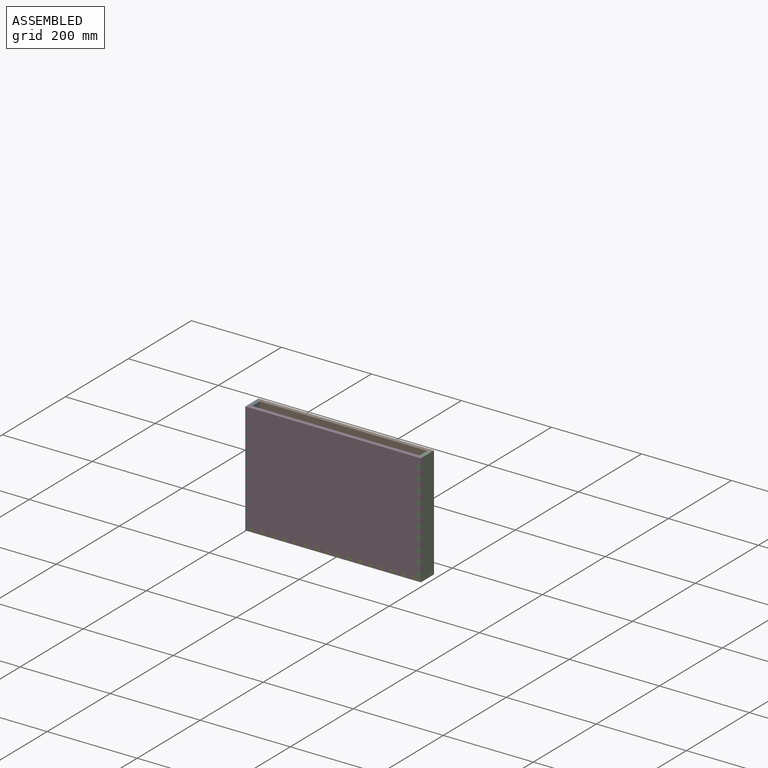
[diagram: assembled view]
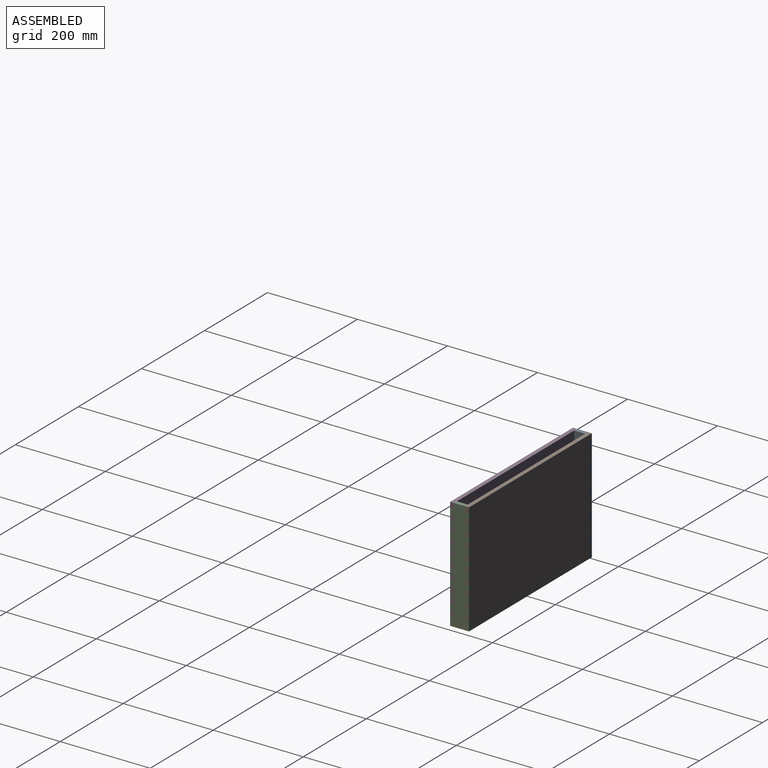
[diagram: assembled view, second angle]
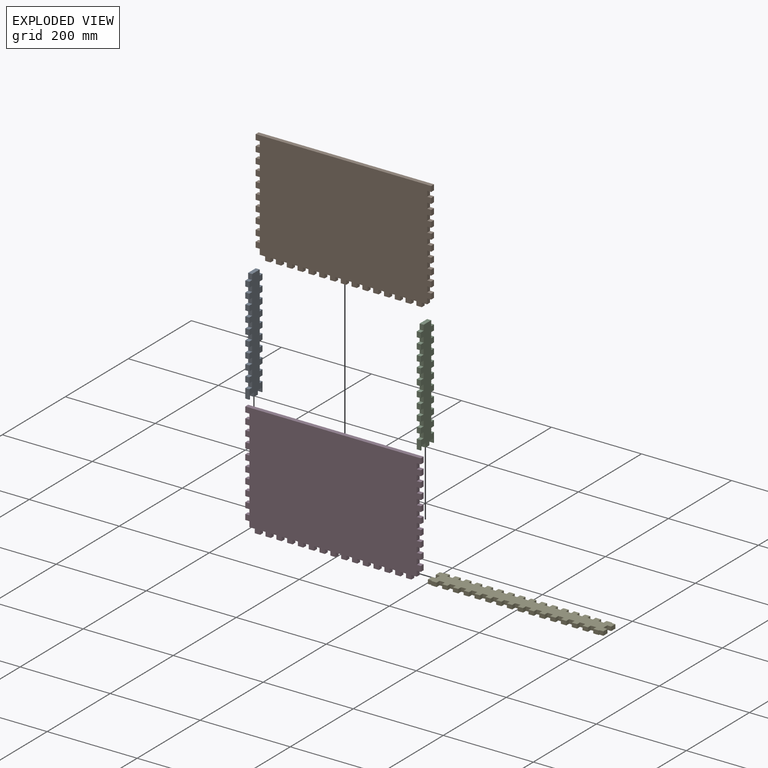
[diagram: exploded view]
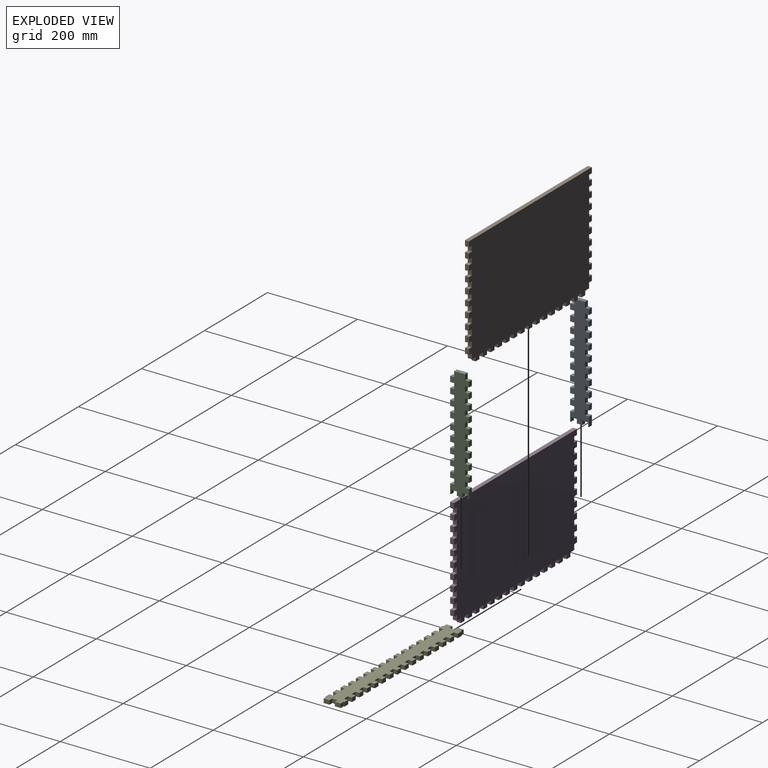
[diagram: exploded view, second angle]
ASSEMBLY  parts=5 mates=4
PART A: 90 faces, bbox 9x42x249 mm
  f0: plane 13x9mm, normal (0,0,-1), area 117mm2, adj f23,f24,f83,f89
  f1: plane 13x9mm, normal (0,0,-1), area 117mm2, adj f23,f24,f85,f86
  f2: plane 12x9mm, normal (0,1,0), area 108mm2, adj f23,f24,f54,f79
  f3: plane 12x9mm, normal (0,1,0), area 108mm2, adj f23,f24,f75,f78
  f4: plane 12x9mm, normal (0,1,0), area 108mm2, adj f23,f24,f57,f73
  f5: plane 12x9mm, normal (0,1,0), area 108mm2, adj f23,f24,f63,f70
  f6: plane 12x9mm, normal (0,1,0), area 108mm2, adj f23,f24,f67,f72
  f7: plane 12x9mm, normal (0,1,0), area 108mm2, adj f23,f24,f64,f77
  f8: plane 12x9mm, normal (0,1,0), area 108mm2, adj f23,f24,f61,f66
  f9: plane 12x9mm, normal (0,1,0), area 108mm2, adj f23,f24,f58,f69
  f10: plane 12x9mm, normal (0,1,0), area 108mm2, adj f23,f24,f55,f82
  f11: plane 12x9mm, normal (0,-1,0), area 108mm2, adj f23,f24,f49,f51
  f12: plane 12x9mm, normal (0,-1,0), area 108mm2, adj f23,f24,f46,f48
  f13: plane 12x9mm, normal (0,-1,0), area 108mm2, adj f23,f24,f43,f45
  f14: plane 12x9mm, normal (0,-1,0), area 108mm2, adj f23,f24,f40,f42
  f15: plane 12x9mm, normal (0,-1,0), area 108mm2, adj f23,f24,f37,f39
  f16: plane 12x9mm, normal (0,-1,0), area 108mm2, adj f23,f24,f34,f36
  f17: plane 12x9mm, normal (0,-1,0), area 108mm2, adj f23,f24,f31,f33
  f18: plane 12x9mm, normal (0,-1,0), area 108mm2, adj f23,f24,f28,f30
  f19: plane 12x9mm, normal (0,-1,0), area 108mm2, adj f23,f24,f25,f27
  f20: plane 12x9mm, normal (0,-1,0), area 108mm2, adj f22,f23,f24,f52
  f21: plane 12x9mm, normal (0,1,0), area 108mm2, adj f22,f23,f24,f60
  f22: plane 24x9mm, normal (0,0,1), area 216mm2, adj f20,f21,f23,f24
  f23: plane 249x42mm, normal (1,0,0), area 8064mm2, adj f0,f1,f2,f3,f4,f5,f6,f7
  f24: plane 249x42mm, normal (-1,0,0), area 8064mm2, adj f0,f1,f2,f3,f4,f5,f6,f7
  f25: plane 9x9mm, normal (0,0,1), area 81mm2, adj f19,f23,f24,f26
  f26: plane 21x9mm, normal (0,-1,0), area 189mm2, adj f23,f24,f25,f88
  f27: plane 9x9mm, normal (0,0,-1), area 81mm2, adj f19,f23,f24,f29
  f28: plane 9x9mm, normal (0,0,1), area 81mm2, adj f18,f23,f24,f29
  f29: plane 12x9mm, normal (0,-1,0), area 108mm2, adj f23,f24,f27,f28
  f30: plane 9x9mm, normal (0,0,-1), area 81mm2, adj f18,f23,f24,f32
  f31: plane 9x9mm, normal (0,0,1), area 81mm2, adj f17,f23,f24,f32
  f32: plane 12x9mm, normal (0,-1,0), area 108mm2, adj f23,f24,f30,f31
  f33: plane 9x9mm, normal (0,0,-1), area 81mm2, adj f17,f23,f24,f35
  f34: plane 9x9mm, normal (0,0,1), area 81mm2, adj f16,f23,f24,f35
  f35: plane 12x9mm, normal (0,-1,0), area 108mm2, adj f23,f24,f33,f34
  f36: plane 9x9mm, normal (0,0,-1), area 81mm2, adj f16,f23,f24,f38
  f37: plane 9x9mm, normal (0,0,1), area 81mm2, adj f15,f23,f24,f38
  f38: plane 12x9mm, normal (0,-1,0), area 108mm2, adj f23,f24,f36,f37
  f39: plane 9x9mm, normal (0,0,-1), area 81mm2, adj f15,f23,f24,f41
  f40: plane 9x9mm, normal (0,0,1), area 81mm2, adj f14,f23,f24,f41
  f41: plane 12x9mm, normal (0,-1,0), area 108mm2, adj f23,f24,f39,f40
  f42: plane 9x9mm, normal (0,0,-1), area 81mm2, adj f14,f23,f24,f44
  f43: plane 9x9mm, normal (0,0,1), area 81mm2, adj f13,f23,f24,f44
  f44: plane 12x9mm, normal (0,-1,0), area 108mm2, adj f23,f24,f42,f43
  f45: plane 9x9mm, normal (0,0,-1), area 81mm2, adj f13,f23,f24,f47
  f46: plane 9x9mm, normal (0,0,1), area 81mm2, adj f12,f23,f24,f47
  f47: plane 12x9mm, normal (0,-1,0), area 108mm2, adj f23,f24,f45,f46
  f48: plane 9x9mm, normal (0,0,-1), area 81mm2, adj f12,f23,f24,f50
  f49: plane 9x9mm, normal (0,0,1), area 81mm2, adj f11,f23,f24,f50
  f50: plane 12x9mm, normal (0,-1,0), area 108mm2, adj f23,f24,f48,f49
  f51: plane 9x9mm, normal (0,0,-1), area 81mm2, adj f11,f23,f24,f53
  f52: plane 9x9mm, normal (0,0,1), area 81mm2, adj f20,f23,f24,f53
  f53: plane 12x9mm, normal (0,-1,0), area 108mm2, adj f23,f24,f51,f52
  f54: plane 9x9mm, normal (0,0,1), area 81mm2, adj f2,f23,f24,f56
  f55: plane 9x9mm, normal (0,0,-1), area 81mm2, adj f10,f23,f24,f56
  f56: plane 12x9mm, normal (0,1,0), area 108mm2, adj f23,f24,f54,f55
  f57: plane 9x9mm, normal (0,0,1), area 81mm2, adj f4,f23,f24,f59
  f58: plane 9x9mm, normal (0,0,-1), area 81mm2, adj f9,f23,f24,f59
  f59: plane 12x9mm, normal (0,1,0), area 108mm2, adj f23,f24,f57,f58
  f60: plane 9x9mm, normal (0,0,1), area 81mm2, adj f21,f23,f24,f62
  f61: plane 9x9mm, normal (0,0,-1), area 81mm2, adj f8,f23,f24,f62
  f62: plane 12x9mm, normal (0,1,0), area 108mm2, adj f23,f24,f60,f61
  f63: plane 9x9mm, normal (0,0,1), area 81mm2, adj f5,f23,f24,f65
  f64: plane 9x9mm, normal (0,0,-1), area 81mm2, adj f7,f23,f24,f65
  f65: plane 12x9mm, normal (0,1,0), area 108mm2, adj f23,f24,f63,f64
  f66: plane 9x9mm, normal (0,0,1), area 81mm2, adj f8,f23,f24,f68
  f67: plane 9x9mm, normal (0,0,-1), area 81mm2, adj f6,f23,f24,f68
  f68: plane 12x9mm, normal (0,1,0), area 108mm2, adj f23,f24,f66,f67
  f69: plane 9x9mm, normal (0,0,1), area 81mm2, adj f9,f23,f24,f71
  f70: plane 9x9mm, normal (0,0,-1), area 81mm2, adj f5,f23,f24,f71
  f71: plane 12x9mm, normal (0,1,0), area 108mm2, adj f23,f24,f69,f70
  f72: plane 9x9mm, normal (0,0,1), area 81mm2, adj f6,f23,f24,f74
  f73: plane 9x9mm, normal (0,0,-1), area 81mm2, adj f4,f23,f24,f74
  f74: plane 12x9mm, normal (0,1,0), area 108mm2, adj f23,f24,f72,f73
  f75: plane 9x9mm, normal (0,0,-1), area 81mm2, adj f3,f23,f24,f76
  f76: plane 12x9mm, normal (0,1,0), area 108mm2, adj f23,f24,f75,f77
  f77: plane 9x9mm, normal (0,0,1), area 81mm2, adj f7,f23,f24,f76
  f78: plane 9x9mm, normal (0,0,1), area 81mm2, adj f3,f23,f24,f80
  f79: plane 9x9mm, normal (0,0,-1), area 81mm2, adj f2,f23,f24,f80
  f80: plane 12x9mm, normal (0,1,0), area 108mm2, adj f23,f24,f78,f79
  f81: plane 21x9mm, normal (0,1,0), area 189mm2, adj f23,f24,f82,f87
  f82: plane 9x9mm, normal (0,0,1), area 81mm2, adj f10,f23,f24,f81
  f83: plane 9x9mm, normal (0,-1,0), area 81mm2, adj f0,f23,f24,f84
  f84: plane 12x9mm, normal (0,0,-1), area 108mm2, adj f23,f24,f83,f85
  f85: plane 9x9mm, normal (0,1,0), area 81mm2, adj f1,f23,f24,f84
  f86: plane 9x9mm, normal (0,-1,0), area 81mm2, adj f1,f23,f24,f87
  f87: plane 9x2mm, normal (0,0,-1), area 18mm2, adj f23,f24,f81,f86
  f88: plane 9x2mm, normal (0,0,-1), area 18mm2, adj f23,f24,f26,f89
  f89: plane 9x9mm, normal (0,1,0), area 81mm2, adj f0,f23,f24,f88
PART B: 142 faces, bbox 390x9x249 mm
  f0: plane 12x9mm, normal (0,0,-1), area 108mm2, adj f37,f38,f124,f139
  f1: plane 12x9mm, normal (0,0,-1), area 108mm2, adj f37,f38,f130,f136
  f2: plane 12x9mm, normal (0,0,-1), area 108mm2, adj f37,f38,f133,f141
  f3: plane 12x9mm, normal (0,0,-1), area 108mm2, adj f25,f37,f38,f132
  f4: plane 12x9mm, normal (0,0,-1), area 108mm2, adj f37,f38,f129,f138
  f5: plane 12x9mm, normal (0,0,-1), area 108mm2, adj f37,f38,f126,f127
  f6: plane 12x9mm, normal (0,0,-1), area 108mm2, adj f37,f38,f123,f135
  f7: plane 12x9mm, normal (0,0,-1), area 108mm2, adj f37,f38,f117,f118
  f8: plane 12x9mm, normal (0,0,-1), area 108mm2, adj f37,f38,f114,f115
  f9: plane 12x9mm, normal (0,0,-1), area 108mm2, adj f37,f38,f111,f112
  f10: plane 12x9mm, normal (0,0,-1), area 108mm2, adj f37,f38,f108,f109
  f11: plane 12x9mm, normal (0,0,-1), area 108mm2, adj f37,f38,f105,f106
  f12: plane 12x9mm, normal (0,0,-1), area 108mm2, adj f37,f38,f102,f103
  f13: plane 12x9mm, normal (0,0,-1), area 108mm2, adj f37,f38,f99,f100
  f14: plane 12x9mm, normal (0,0,-1), area 108mm2, adj f37,f38,f97,f121
  f15: plane 12x9mm, normal (1,0,0), area 108mm2, adj f37,f38,f93,f95
  f16: plane 12x9mm, normal (1,0,0), area 108mm2, adj f37,f38,f88,f91
  f17: plane 12x9mm, normal (1,0,0), area 108mm2, adj f37,f38,f79,f89
  f18: plane 12x9mm, normal (1,0,0), area 108mm2, adj f37,f38,f76,f86
  f19: plane 12x9mm, normal (1,0,0), area 108mm2, adj f37,f38,f83,f85
  f20: plane 12x9mm, normal (1,0,0), area 108mm2, adj f37,f38,f73,f80
  f21: plane 12x9mm, normal (1,0,0), area 108mm2, adj f35,f37,f38,f77
  f22: plane 12x9mm, normal (1,0,0), area 108mm2, adj f37,f38,f74,f82
  f23: plane 12x9mm, normal (1,0,0), area 108mm2, adj f37,f38,f71,f94
  f24: plane 12x9mm, normal (1,0,0), area 108mm2, adj f37,f38,f68,f70
  f25: plane 12x9mm, normal (-1,0,0), area 108mm2, adj f3,f37,f38,f67
  f26: plane 12x9mm, normal (-1,0,0), area 108mm2, adj f37,f38,f64,f65
  f27: plane 12x9mm, normal (-1,0,0), area 108mm2, adj f37,f38,f61,f62
  f28: plane 12x9mm, normal (-1,0,0), area 108mm2, adj f37,f38,f58,f59
  f29: plane 12x9mm, normal (-1,0,0), area 108mm2, adj f37,f38,f55,f56
  f30: plane 12x9mm, normal (-1,0,0), area 108mm2, adj f37,f38,f52,f53
  f31: plane 12x9mm, normal (-1,0,0), area 108mm2, adj f37,f38,f49,f50
  f32: plane 12x9mm, normal (-1,0,0), area 108mm2, adj f37,f38,f46,f47
  f33: plane 12x9mm, normal (-1,0,0), area 108mm2, adj f37,f38,f43,f44
  f34: plane 12x9mm, normal (-1,0,0), area 108mm2, adj f37,f38,f39,f41
  f35: plane 12x9mm, normal (0,0,-1), area 108mm2, adj f21,f37,f38,f120
  f36: plane 390x9mm, normal (0,0,1), area 3510mm2, adj f37,f38,f40,f69
  f37: plane 390x249mm, normal (0,-1,0), area 93060mm2, adj f0,f1,f2,f3,f4,f5,f6,f7
  f38: plane 390x249mm, normal (0,1,0), area 93060mm2, adj f0,f1,f2,f3,f4,f5,f6,f7
  f39: plane 9x9mm, normal (0,0,-1), area 81mm2, adj f34,f37,f38,f40
  f40: plane 12x9mm, normal (-1,0,0), area 108mm2, adj f36,f37,f38,f39
  f41: plane 9x9mm, normal (0,0,1), area 81mm2, adj f34,f37,f38,f42
  f42: plane 12x9mm, normal (-1,0,0), area 108mm2, adj f37,f38,f41,f43
  f43: plane 9x9mm, normal (0,0,-1), area 81mm2, adj f33,f37,f38,f42
  f44: plane 9x9mm, normal (0,0,1), area 81mm2, adj f33,f37,f38,f45
  f45: plane 12x9mm, normal (-1,0,0), area 108mm2, adj f37,f38,f44,f46
  f46: plane 9x9mm, normal (0,0,-1), area 81mm2, adj f32,f37,f38,f45
  f47: plane 9x9mm, normal (0,0,1), area 81mm2, adj f32,f37,f38,f48
  f48: plane 12x9mm, normal (-1,0,0), area 108mm2, adj f37,f38,f47,f49
  f49: plane 9x9mm, normal (0,0,-1), area 81mm2, adj f31,f37,f38,f48
  f50: plane 9x9mm, normal (0,0,1), area 81mm2, adj f31,f37,f38,f51
  f51: plane 12x9mm, normal (-1,0,0), area 108mm2, adj f37,f38,f50,f52
  f52: plane 9x9mm, normal (0,0,-1), area 81mm2, adj f30,f37,f38,f51
  f53: plane 9x9mm, normal (0,0,1), area 81mm2, adj f30,f37,f38,f54
  f54: plane 12x9mm, normal (-1,0,0), area 108mm2, adj f37,f38,f53,f55
  f55: plane 9x9mm, normal (0,0,-1), area 81mm2, adj f29,f37,f38,f54
  f56: plane 9x9mm, normal (0,0,1), area 81mm2, adj f29,f37,f38,f57
  f57: plane 12x9mm, normal (-1,0,0), area 108mm2, adj f37,f38,f56,f58
  f58: plane 9x9mm, normal (0,0,-1), area 81mm2, adj f28,f37,f38,f57
  f59: plane 9x9mm, normal (0,0,1), area 81mm2, adj f28,f37,f38,f60
  f60: plane 12x9mm, normal (-1,0,0), area 108mm2, adj f37,f38,f59,f61
  f61: plane 9x9mm, normal (0,0,-1), area 81mm2, adj f27,f37,f38,f60
  f62: plane 9x9mm, normal (0,0,1), area 81mm2, adj f27,f37,f38,f63
  f63: plane 12x9mm, normal (-1,0,0), area 108mm2, adj f37,f38,f62,f64
  f64: plane 9x9mm, normal (0,0,-1), area 81mm2, adj f26,f37,f38,f63
  f65: plane 9x9mm, normal (0,0,1), area 81mm2, adj f26,f37,f38,f66
  f66: plane 12x9mm, normal (-1,0,0), area 108mm2, adj f37,f38,f65,f67
  f67: plane 9x9mm, normal (0,0,-1), area 81mm2, adj f25,f37,f38,f66
  f68: plane 9x9mm, normal (0,0,-1), area 81mm2, adj f24,f37,f38,f69
  f69: plane 12x9mm, normal (1,0,0), area 108mm2, adj f36,f37,f38,f68
  f70: plane 9x9mm, normal (0,0,1), area 81mm2, adj f24,f37,f38,f72
  f71: plane 9x9mm, normal (0,0,-1), area 81mm2, adj f23,f37,f38,f72
  f72: plane 12x9mm, normal (1,0,0), area 108mm2, adj f37,f38,f70,f71
  f73: plane 9x9mm, normal (0,0,1), area 81mm2, adj f20,f37,f38,f75
  f74: plane 9x9mm, normal (0,0,-1), area 81mm2, adj f22,f37,f38,f75
  f75: plane 12x9mm, normal (1,0,0), area 108mm2, adj f37,f38,f73,f74
  f76: plane 9x9mm, normal (0,0,1), area 81mm2, adj f18,f37,f38,f78
  f77: plane 9x9mm, normal (0,0,-1), area 81mm2, adj f21,f37,f38,f78
  f78: plane 12x9mm, normal (1,0,0), area 108mm2, adj f37,f38,f76,f77
  f79: plane 9x9mm, normal (0,0,1), area 81mm2, adj f17,f37,f38,f81
  f80: plane 9x9mm, normal (0,0,-1), area 81mm2, adj f20,f37,f38,f81
  f81: plane 12x9mm, normal (1,0,0), area 108mm2, adj f37,f38,f79,f80
  f82: plane 9x9mm, normal (0,0,1), area 81mm2, adj f22,f37,f38,f84
  f83: plane 9x9mm, normal (0,0,-1), area 81mm2, adj f19,f37,f38,f84
  f84: plane 12x9mm, normal (1,0,0), area 108mm2, adj f37,f38,f82,f83
  f85: plane 9x9mm, normal (0,0,1), area 81mm2, adj f19,f37,f38,f87
  f86: plane 9x9mm, normal (0,0,-1), area 81mm2, adj f18,f37,f38,f87
  f87: plane 12x9mm, normal (1,0,0), area 108mm2, adj f37,f38,f85,f86
  f88: plane 9x9mm, normal (0,0,1), area 81mm2, adj f16,f37,f38,f90
  f89: plane 9x9mm, normal (0,0,-1), area 81mm2, adj f17,f37,f38,f90
  f90: plane 12x9mm, normal (1,0,0), area 108mm2, adj f37,f38,f88,f89
  f91: plane 9x9mm, normal (0,0,-1), area 81mm2, adj f16,f37,f38,f92
  f92: plane 12x9mm, normal (1,0,0), area 108mm2, adj f37,f38,f91,f93
  f93: plane 9x9mm, normal (0,0,1), area 81mm2, adj f15,f37,f38,f92
  f94: plane 9x9mm, normal (0,0,1), area 81mm2, adj f23,f37,f38,f96
  f95: plane 9x9mm, normal (0,0,-1), area 81mm2, adj f15,f37,f38,f96
  f96: plane 12x9mm, normal (1,0,0), area 108mm2, adj f37,f38,f94,f95
  f97: plane 9x9mm, normal (-1,0,0), area 81mm2, adj f14,f37,f38,f98
  f98: plane 12x9mm, normal (0,0,-1), area 108mm2, adj f37,f38,f97,f99
  f99: plane 9x9mm, normal (1,0,0), area 81mm2, adj f13,f37,f38,f98
  f100: plane 9x9mm, normal (-1,0,0), area 81mm2, adj f13,f37,f38,f101
  f101: plane 12x9mm, normal (0,0,-1), area 108mm2, adj f37,f38,f100,f102
  f102: plane 9x9mm, normal (1,0,0), area 81mm2, adj f12,f37,f38,f101
  f103: plane 9x9mm, normal (-1,0,0), area 81mm2, adj f12,f37,f38,f104
  f104: plane 12x9mm, normal (0,0,-1), area 108mm2, adj f37,f38,f103,f105
  f105: plane 9x9mm, normal (1,0,0), area 81mm2, adj f11,f37,f38,f104
  f106: plane 9x9mm, normal (-1,0,0), area 81mm2, adj f11,f37,f38,f107
  f107: plane 12x9mm, normal (0,0,-1), area 108mm2, adj f37,f38,f106,f108
  f108: plane 9x9mm, normal (1,0,0), area 81mm2, adj f10,f37,f38,f107
  f109: plane 9x9mm, normal (-1,0,0), area 81mm2, adj f10,f37,f38,f110
  f110: plane 12x9mm, normal (0,0,-1), area 108mm2, adj f37,f38,f109,f111
  f111: plane 9x9mm, normal (1,0,0), area 81mm2, adj f9,f37,f38,f110
  f112: plane 9x9mm, normal (-1,0,0), area 81mm2, adj f9,f37,f38,f113
  f113: plane 12x9mm, normal (0,0,-1), area 108mm2, adj f37,f38,f112,f114
  f114: plane 9x9mm, normal (1,0,0), area 81mm2, adj f8,f37,f38,f113
  f115: plane 9x9mm, normal (-1,0,0), area 81mm2, adj f8,f37,f38,f116
  f116: plane 12x9mm, normal (0,0,-1), area 108mm2, adj f37,f38,f115,f117
  f117: plane 9x9mm, normal (1,0,0), area 81mm2, adj f7,f37,f38,f116
  f118: plane 9x9mm, normal (-1,0,0), area 81mm2, adj f7,f37,f38,f119
  f119: plane 12x9mm, normal (0,0,-1), area 108mm2, adj f37,f38,f118,f120
  f120: plane 9x9mm, normal (1,0,0), area 81mm2, adj f35,f37,f38,f119
  f121: plane 9x9mm, normal (1,0,0), area 81mm2, adj f14,f37,f38,f122
  f122: plane 12x9mm, normal (0,0,-1), area 108mm2, adj f37,f38,f121,f123
  f123: plane 9x9mm, normal (-1,0,0), area 81mm2, adj f6,f37,f38,f122
  f124: plane 9x9mm, normal (1,0,0), area 81mm2, adj f0,f37,f38,f125
  f125: plane 12x9mm, normal (0,0,-1), area 108mm2, adj f37,f38,f124,f126
  f126: plane 9x9mm, normal (-1,0,0), area 81mm2, adj f5,f37,f38,f125
  f127: plane 9x9mm, normal (1,0,0), area 81mm2, adj f5,f37,f38,f128
  f128: plane 12x9mm, normal (0,0,-1), area 108mm2, adj f37,f38,f127,f129
  f129: plane 9x9mm, normal (-1,0,0), area 81mm2, adj f4,f37,f38,f128
  f130: plane 9x9mm, normal (1,0,0), area 81mm2, adj f1,f37,f38,f131
  f131: plane 12x9mm, normal (0,0,-1), area 108mm2, adj f37,f38,f130,f132
  f132: plane 9x9mm, normal (-1,0,0), area 81mm2, adj f3,f37,f38,f131
  f133: plane 9x9mm, normal (-1,0,0), area 81mm2, adj f2,f37,f38,f134
  f134: plane 12x9mm, normal (0,0,-1), area 108mm2, adj f37,f38,f133,f135
  f135: plane 9x9mm, normal (1,0,0), area 81mm2, adj f6,f37,f38,f134
  f136: plane 9x9mm, normal (-1,0,0), area 81mm2, adj f1,f37,f38,f137
  f137: plane 12x9mm, normal (0,0,-1), area 108mm2, adj f37,f38,f136,f138
  f138: plane 9x9mm, normal (1,0,0), area 81mm2, adj f4,f37,f38,f137
  f139: plane 9x9mm, normal (-1,0,0), area 81mm2, adj f0,f37,f38,f140
  f140: plane 12x9mm, normal (0,0,-1), area 108mm2, adj f37,f38,f139,f141
  f141: plane 9x9mm, normal (1,0,0), area 81mm2, adj f2,f37,f38,f140
PART C: same geometry as A
PART D: same geometry as B
PART E: 142 faces, bbox 390x42x9 mm
  f0: plane 390x42mm, normal (0,0,1), area 12852mm2, adj f2,f3,f4,f5,f6,f7,f8,f9
  f1: plane 390x42mm, normal (0,0,-1), area 12852mm2, adj f2,f3,f4,f5,f6,f7,f8,f9
  f2: plane 9x9mm, normal (0,-1,0), area 81mm2, adj f0,f1,f138,f140
  f3: plane 9x9mm, normal (0,1,0), area 81mm2, adj f0,f1,f139,f140
  f4: plane 9x9mm, normal (0,-1,0), area 81mm2, adj f0,f1,f7,f139
  f5: plane 9x9mm, normal (0,1,0), area 81mm2, adj f0,f1,f117,f138
  f6: plane 9x2mm, normal (1,0,0), area 18mm2, adj f0,f1,f122,f134
  f7: plane 9x2mm, normal (-1,0,0), area 18mm2, adj f0,f1,f4,f83
  f8: plane 12x9mm, normal (0,1,0), area 108mm2, adj f0,f1,f118,f129
  f9: plane 12x9mm, normal (0,1,0), area 108mm2, adj f0,f1,f108,f126
  f10: plane 12x9mm, normal (0,1,0), area 108mm2, adj f0,f1,f102,f124
  f11: plane 12x9mm, normal (0,1,0), area 108mm2, adj f0,f1,f97,f119
  f12: plane 12x9mm, normal (0,1,0), area 108mm2, adj f0,f1,f112,f115
  f13: plane 12x9mm, normal (0,1,0), area 108mm2, adj f0,f1,f113,f131
  f14: plane 12x9mm, normal (0,1,0), area 108mm2, adj f0,f1,f110,f123
  f15: plane 12x9mm, normal (0,1,0), area 108mm2, adj f0,f1,f106,f109
  f16: plane 12x9mm, normal (0,1,0), area 108mm2, adj f0,f1,f94,f104
  f17: plane 12x9mm, normal (0,1,0), area 108mm2, adj f0,f1,f100,f121
  f18: plane 12x9mm, normal (0,1,0), area 108mm2, adj f0,f1,f98,f103
  f19: plane 12x9mm, normal (0,1,0), area 108mm2, adj f0,f1,f88,f95
  f20: plane 12x9mm, normal (0,1,0), area 108mm2, adj f0,f1,f91,f128
  f21: plane 12x9mm, normal (0,1,0), area 108mm2, adj f0,f1,f87,f89
  f22: plane 12x9mm, normal (0,1,0), area 108mm2, adj f0,f1,f85,f93
  f23: plane 12x9mm, normal (0,-1,0), area 108mm2, adj f0,f1,f74,f84
  f24: plane 12x9mm, normal (0,-1,0), area 108mm2, adj f0,f1,f68,f80
  f25: plane 12x9mm, normal (0,-1,0), area 108mm2, adj f0,f1,f62,f79
  f26: plane 12x9mm, normal (0,-1,0), area 108mm2, adj f0,f1,f71,f76
  f27: plane 12x9mm, normal (0,-1,0), area 108mm2, adj f0,f1,f73,f81
  f28: plane 12x9mm, normal (0,-1,0), area 108mm2, adj f0,f1,f66,f70
  f29: plane 12x9mm, normal (0,-1,0), area 108mm2, adj f0,f1,f65,f77
  f30: plane 12x9mm, normal (0,-1,0), area 108mm2, adj f0,f1,f39,f64
  f31: plane 12x9mm, normal (0,-1,0), area 108mm2, adj f0,f1,f56,f60
  f32: plane 12x9mm, normal (0,-1,0), area 108mm2, adj f0,f1,f53,f57
  f33: plane 12x9mm, normal (0,-1,0), area 108mm2, adj f0,f1,f50,f54
  f34: plane 12x9mm, normal (0,-1,0), area 108mm2, adj f0,f1,f47,f51
  f35: plane 12x9mm, normal (0,-1,0), area 108mm2, adj f0,f1,f44,f48
  f36: plane 12x9mm, normal (0,-1,0), area 108mm2, adj f0,f1,f41,f45
  f37: plane 12x9mm, normal (0,-1,0), area 108mm2, adj f0,f1,f38,f42
  f38: plane 9x9mm, normal (1,0,0), area 81mm2, adj f0,f1,f37,f40
  f39: plane 9x9mm, normal (-1,0,0), area 81mm2, adj f0,f1,f30,f40
  f40: plane 12x9mm, normal (0,-1,0), area 108mm2, adj f0,f1,f38,f39
  f41: plane 9x9mm, normal (1,0,0), area 81mm2, adj f0,f1,f36,f43
  f42: plane 9x9mm, normal (-1,0,0), area 81mm2, adj f0,f1,f37,f43
  f43: plane 12x9mm, normal (0,-1,0), area 108mm2, adj f0,f1,f41,f42
  f44: plane 9x9mm, normal (1,0,0), area 81mm2, adj f0,f1,f35,f46
  f45: plane 9x9mm, normal (-1,0,0), area 81mm2, adj f0,f1,f36,f46
  f46: plane 12x9mm, normal (0,-1,0), area 108mm2, adj f0,f1,f44,f45
  f47: plane 9x9mm, normal (1,0,0), area 81mm2, adj f0,f1,f34,f49
  f48: plane 9x9mm, normal (-1,0,0), area 81mm2, adj f0,f1,f35,f49
  f49: plane 12x9mm, normal (0,-1,0), area 108mm2, adj f0,f1,f47,f48
  f50: plane 9x9mm, normal (1,0,0), area 81mm2, adj f0,f1,f33,f52
  f51: plane 9x9mm, normal (-1,0,0), area 81mm2, adj f0,f1,f34,f52
  f52: plane 12x9mm, normal (0,-1,0), area 108mm2, adj f0,f1,f50,f51
  f53: plane 9x9mm, normal (1,0,0), area 81mm2, adj f0,f1,f32,f55
  f54: plane 9x9mm, normal (-1,0,0), area 81mm2, adj f0,f1,f33,f55
  f55: plane 12x9mm, normal (0,-1,0), area 108mm2, adj f0,f1,f53,f54
  f56: plane 9x9mm, normal (1,0,0), area 81mm2, adj f0,f1,f31,f58
  f57: plane 9x9mm, normal (-1,0,0), area 81mm2, adj f0,f1,f32,f58
  f58: plane 12x9mm, normal (0,-1,0), area 108mm2, adj f0,f1,f56,f57
  f59: plane 9x2mm, normal (1,0,0), area 18mm2, adj f0,f1,f61,f135
  f60: plane 9x9mm, normal (-1,0,0), area 81mm2, adj f0,f1,f31,f61
  f61: plane 12x9mm, normal (0,-1,0), area 108mm2, adj f0,f1,f59,f60
  f62: plane 9x9mm, normal (-1,0,0), area 81mm2, adj f0,f1,f25,f63
  f63: plane 12x9mm, normal (0,-1,0), area 108mm2, adj f0,f1,f62,f64
  f64: plane 9x9mm, normal (1,0,0), area 81mm2, adj f0,f1,f30,f63
  f65: plane 9x9mm, normal (1,0,0), area 81mm2, adj f0,f1,f29,f67
  f66: plane 9x9mm, normal (-1,0,0), area 81mm2, adj f0,f1,f28,f67
  f67: plane 12x9mm, normal (0,-1,0), area 108mm2, adj f0,f1,f65,f66
  f68: plane 9x9mm, normal (-1,0,0), area 81mm2, adj f0,f1,f24,f69
  f69: plane 12x9mm, normal (0,-1,0), area 108mm2, adj f0,f1,f68,f70
  f70: plane 9x9mm, normal (1,0,0), area 81mm2, adj f0,f1,f28,f69
  f71: plane 9x9mm, normal (-1,0,0), area 81mm2, adj f0,f1,f26,f72
  f72: plane 12x9mm, normal (0,-1,0), area 108mm2, adj f0,f1,f71,f73
  f73: plane 9x9mm, normal (1,0,0), area 81mm2, adj f0,f1,f27,f72
  f74: plane 9x9mm, normal (-1,0,0), area 81mm2, adj f0,f1,f23,f75
  f75: plane 12x9mm, normal (0,-1,0), area 108mm2, adj f0,f1,f74,f76
  f76: plane 9x9mm, normal (1,0,0), area 81mm2, adj f0,f1,f26,f75
  f77: plane 9x9mm, normal (-1,0,0), area 81mm2, adj f0,f1,f29,f78
  f78: plane 12x9mm, normal (0,-1,0), area 108mm2, adj f0,f1,f77,f79
  f79: plane 9x9mm, normal (1,0,0), area 81mm2, adj f0,f1,f25,f78
  f80: plane 9x9mm, normal (1,0,0), area 81mm2, adj f0,f1,f24,f82
  f81: plane 9x9mm, normal (-1,0,0), area 81mm2, adj f0,f1,f27,f82
  f82: plane 12x9mm, normal (0,-1,0), area 108mm2, adj f0,f1,f80,f81
  f83: plane 12x9mm, normal (0,-1,0), area 108mm2, adj f0,f1,f7,f84
  f84: plane 9x9mm, normal (1,0,0), area 81mm2, adj f0,f1,f23,f83
  f85: plane 9x9mm, normal (1,0,0), area 81mm2, adj f0,f1,f22,f86
  f86: plane 12x9mm, normal (0,1,0), area 108mm2, adj f0,f1,f85,f87
  f87: plane 9x9mm, normal (-1,0,0), area 81mm2, adj f0,f1,f21,f86
  f88: plane 9x9mm, normal (-1,0,0), area 81mm2, adj f0,f1,f19,f90
  f89: plane 9x9mm, normal (1,0,0), area 81mm2, adj f0,f1,f21,f90
  f90: plane 12x9mm, normal (0,1,0), area 108mm2, adj f0,f1,f88,f89
  f91: plane 9x9mm, normal (1,0,0), area 81mm2, adj f0,f1,f20,f92
  f92: plane 12x9mm, normal (0,1,0), area 108mm2, adj f0,f1,f91,f93
  f93: plane 9x9mm, normal (-1,0,0), area 81mm2, adj f0,f1,f22,f92
  f94: plane 9x9mm, normal (-1,0,0), area 81mm2, adj f0,f1,f16,f96
  f95: plane 9x9mm, normal (1,0,0), area 81mm2, adj f0,f1,f19,f96
  f96: plane 12x9mm, normal (0,1,0), area 108mm2, adj f0,f1,f94,f95
  f97: plane 9x9mm, normal (-1,0,0), area 81mm2, adj f0,f1,f11,f99
  f98: plane 9x9mm, normal (1,0,0), area 81mm2, adj f0,f1,f18,f99
  f99: plane 12x9mm, normal (0,1,0), area 108mm2, adj f0,f1,f97,f98
  f100: plane 9x9mm, normal (1,0,0), area 81mm2, adj f0,f1,f17,f101
  f101: plane 12x9mm, normal (0,1,0), area 108mm2, adj f0,f1,f100,f102
  f102: plane 9x9mm, normal (-1,0,0), area 81mm2, adj f0,f1,f10,f101
  f103: plane 9x9mm, normal (-1,0,0), area 81mm2, adj f0,f1,f18,f105
  f104: plane 9x9mm, normal (1,0,0), area 81mm2, adj f0,f1,f16,f105
  f105: plane 12x9mm, normal (0,1,0), area 108mm2, adj f0,f1,f103,f104
  f106: plane 9x9mm, normal (1,0,0), area 81mm2, adj f0,f1,f15,f107
  f107: plane 12x9mm, normal (0,1,0), area 108mm2, adj f0,f1,f106,f108
  f108: plane 9x9mm, normal (-1,0,0), area 81mm2, adj f0,f1,f9,f107
  f109: plane 9x9mm, normal (-1,0,0), area 81mm2, adj f0,f1,f15,f111
  f110: plane 9x9mm, normal (1,0,0), area 81mm2, adj f0,f1,f14,f111
  f111: plane 12x9mm, normal (0,1,0), area 108mm2, adj f0,f1,f109,f110
  f112: plane 9x9mm, normal (-1,0,0), area 81mm2, adj f0,f1,f12,f114
  f113: plane 9x9mm, normal (1,0,0), area 81mm2, adj f0,f1,f13,f114
  f114: plane 12x9mm, normal (0,1,0), area 108mm2, adj f0,f1,f112,f113
  f115: plane 9x9mm, normal (1,0,0), area 81mm2, adj f0,f1,f12,f116
  f116: plane 12x9mm, normal (0,1,0), area 108mm2, adj f0,f1,f115,f117
  f117: plane 9x2mm, normal (-1,0,0), area 18mm2, adj f0,f1,f5,f116
  f118: plane 9x9mm, normal (-1,0,0), area 81mm2, adj f0,f1,f8,f120
  f119: plane 9x9mm, normal (1,0,0), area 81mm2, adj f0,f1,f11,f120
  f120: plane 12x9mm, normal (0,1,0), area 108mm2, adj f0,f1,f118,f119
  f121: plane 9x9mm, normal (-1,0,0), area 81mm2, adj f0,f1,f17,f122
  f122: plane 12x9mm, normal (0,1,0), area 108mm2, adj f0,f1,f6,f121
  f123: plane 9x9mm, normal (-1,0,0), area 81mm2, adj f0,f1,f14,f125
  f124: plane 9x9mm, normal (1,0,0), area 81mm2, adj f0,f1,f10,f125
  f125: plane 12x9mm, normal (0,1,0), area 108mm2, adj f0,f1,f123,f124
  f126: plane 9x9mm, normal (1,0,0), area 81mm2, adj f0,f1,f9,f127
  f127: plane 12x9mm, normal (0,1,0), area 108mm2, adj f0,f1,f126,f128
  f128: plane 9x9mm, normal (-1,0,0), area 81mm2, adj f0,f1,f20,f127
  f129: plane 9x9mm, normal (1,0,0), area 81mm2, adj f0,f1,f8,f130
  f130: plane 12x9mm, normal (0,1,0), area 108mm2, adj f0,f1,f129,f131
  f131: plane 9x9mm, normal (-1,0,0), area 81mm2, adj f0,f1,f13,f130
  f132: plane 9x9mm, normal (0,1,0), area 81mm2, adj f0,f1,f136,f141
  f133: plane 9x9mm, normal (0,-1,0), area 81mm2, adj f0,f1,f137,f141
  f134: plane 9x9mm, normal (0,1,0), area 81mm2, adj f0,f1,f6,f137
  f135: plane 9x9mm, normal (0,-1,0), area 81mm2, adj f0,f1,f59,f136
  f136: plane 13x9mm, normal (1,0,0), area 117mm2, adj f0,f1,f132,f135
  f137: plane 13x9mm, normal (1,0,0), area 117mm2, adj f0,f1,f133,f134
  f138: plane 13x9mm, normal (-1,0,0), area 117mm2, adj f0,f1,f2,f5
  f139: plane 13x9mm, normal (-1,0,0), area 117mm2, adj f0,f1,f3,f4
  f140: plane 12x9mm, normal (-1,0,0), area 108mm2, adj f0,f1,f2,f3
  f141: plane 12x9mm, normal (1,0,0), area 108mm2, adj f0,f1,f132,f133
PLACE A t=(-192.84,-74.89,-67.21)mm
PLACE B t=(2.16,-53.89,-67.21)mm
PLACE C t=(188.16,-74.89,-67.21)mm
PLACE D t=(2.16,-86.89,-67.21)mm
PLACE E t=(2.16,-74.89,-196.21)mm
MATE fastened A.f60 <-> B.f39  axis (0,0,1) through (-188.34,-58.39,40.79)mm
MATE fastened E.f84 <-> D.f132  axis (1,0,0) through (-171.84,-91.39,-191.71)mm
MATE fastened D.f68 <-> C.f52  axis (0,0,-1) through (192.66,-91.39,40.79)mm
MATE fastened A.f52 <-> D.f39  axis (0,0,1) through (-188.34,-91.39,40.79)mm
